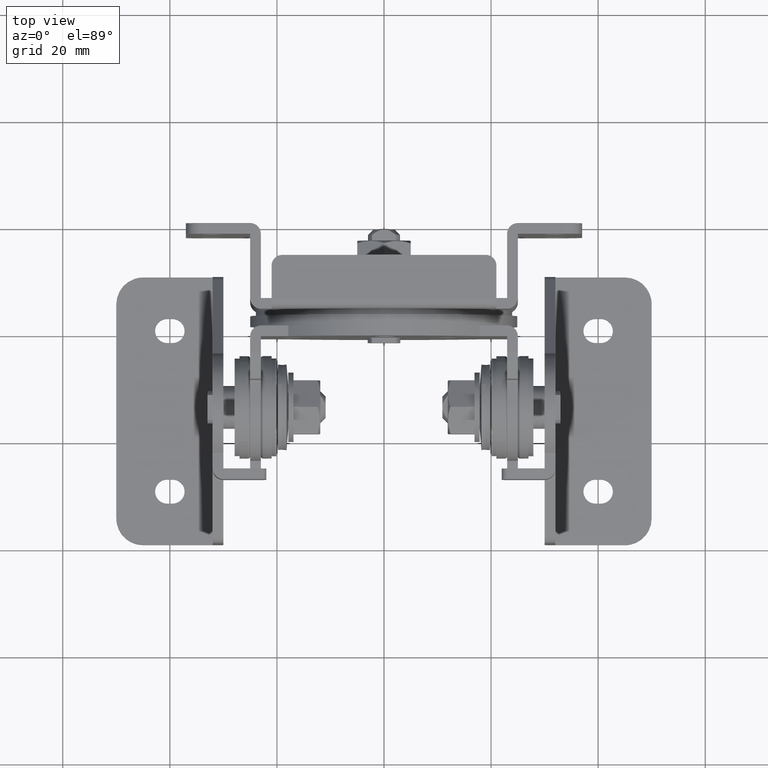
[diagram: clean part render]
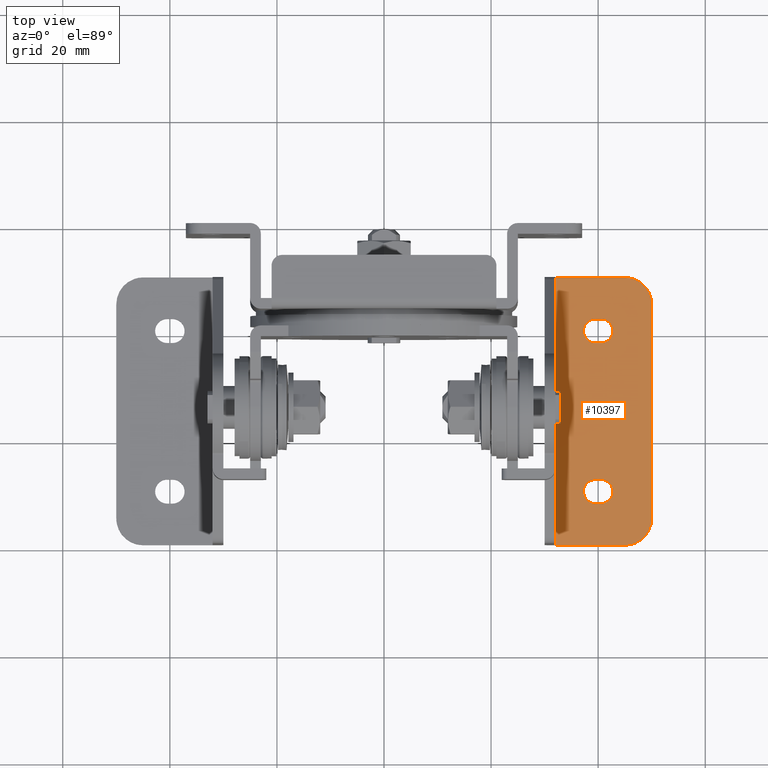
[diagram: same view with one face highlighted and labeled with its STEP entity id]
A machine part, top view. The second image highlights one B-rep face of the part: STEP entity #10397.
In plain terms, the highlighted face is a freeform B-spline surface patch.
Its self-contained STEP definition (entity closure, byte-faithful):
#10048=CARTESIAN_POINT('',(32.0,-59.000000000000902,-42.0));
#10049=VERTEX_POINT('',#10048);
#10055=CARTESIAN_POINT('',(32.0,-9.000000000000270,-42.0));
#10056=VERTEX_POINT('',#10055);
#10057=CARTESIAN_POINT('',(32.0,-9.000000000000270,-42.0));
#10058=CARTESIAN_POINT('',(32.0,-59.000000000000902,-42.0));
#10059=QUASI_UNIFORM_CURVE('',1,(#10057,#10058),.UNSPECIFIED.,.F.,.U.);
#10060=EDGE_CURVE('',#10056,#10049,#10059,.T.);
#10240=CARTESIAN_POINT('',(31.100900034887498,-61.497499903091253,-42.0));
#10241=CARTESIAN_POINT('',(50.899100447910129,-61.497499903091253,-42.0));
#10242=CARTESIAN_POINT('',(31.100900034887498,-6.502498755805436,-42.0));
#10243=CARTESIAN_POINT('',(50.899100447910129,-6.502498755805436,-42.0));
#10244=B_SPLINE_SURFACE_WITH_KNOTS('',1,1,((#10240,#10242),(#10241,#10243)),.UNSPECIFIED.,.F.,.F.,.U.,(2,2),(2,2),(0.0,19.798200413022631),(0.0,54.995001147285812),.UNSPECIFIED.);
#10245=CARTESIAN_POINT('',(45.0,-9.000000000000970,-42.0));
#10246=VERTEX_POINT('',#10245);
#10247=CARTESIAN_POINT('',(32.0,-9.000000000000270,-42.0));
#10248=CARTESIAN_POINT('',(45.0,-9.000000000000970,-42.0));
#10249=QUASI_UNIFORM_CURVE('',1,(#10247,#10248),.UNSPECIFIED.,.F.,.U.);
#10250=EDGE_CURVE('',#10056,#10246,#10249,.T.);
#10251=ORIENTED_EDGE('',*,*,#10250,.F.);
#10252=ORIENTED_EDGE('',*,*,#10060,.T.);
#10253=CARTESIAN_POINT('',(45.0,-59.000000000000902,-42.0));
#10254=VERTEX_POINT('',#10253);
#10255=CARTESIAN_POINT('',(45.0,-59.000000000000902,-42.0));
#10256=CARTESIAN_POINT('',(32.0,-59.000000000000902,-42.0));
#10257=QUASI_UNIFORM_CURVE('',1,(#10255,#10256),.UNSPECIFIED.,.F.,.U.);
#10258=EDGE_CURVE('',#10254,#10049,#10257,.T.);
#10259=ORIENTED_EDGE('',*,*,#10258,.F.);
#10260=CARTESIAN_POINT('',(50.0,-54.000000000001002,-42.0));
#10261=VERTEX_POINT('',#10260);
#10262=CARTESIAN_POINT('',(49.999999999999993,-54.000000000001002,-42.0));
#10263=CARTESIAN_POINT('',(49.999999999999986,-59.000000000000995,-42.000000000000007));
#10264=CARTESIAN_POINT('',(45.0,-59.000000000001002,-42.0));
#10272=(BOUNDED_CURVE()B_SPLINE_CURVE(2,(#10262,#10263,#10264),.UNSPECIFIED.,.F.,.U.)CURVE()GEOMETRIC_REPRESENTATION_ITEM()QUASI_UNIFORM_CURVE()RATIONAL_B_SPLINE_CURVE((1.0,0.707106781186548,1.0))REPRESENTATION_ITEM(''));
#10273=EDGE_CURVE('',#10261,#10254,#10272,.T.);
#10274=ORIENTED_EDGE('',*,*,#10273,.F.);
#10275=CARTESIAN_POINT('',(50.0,-14.000000000000959,-42.0));
#10276=VERTEX_POINT('',#10275);
#10277=CARTESIAN_POINT('',(50.0,-14.000000000000959,-42.0));
#10278=CARTESIAN_POINT('',(50.0,-54.000000000001002,-42.0));
#10279=QUASI_UNIFORM_CURVE('',1,(#10277,#10278),.UNSPECIFIED.,.F.,.U.);
#10280=EDGE_CURVE('',#10276,#10261,#10279,.T.);
#10281=ORIENTED_EDGE('',*,*,#10280,.F.);
#10282=CARTESIAN_POINT('',(45.0,-9.000000000000959,-42.0));
#10283=CARTESIAN_POINT('',(49.999999999999986,-9.000000000000959,-42.000000000000007));
#10284=CARTESIAN_POINT('',(49.999999999999993,-14.000000000000959,-42.0));
#10292=(BOUNDED_CURVE()B_SPLINE_CURVE(2,(#10282,#10283,#10284),.UNSPECIFIED.,.F.,.U.)CURVE()GEOMETRIC_REPRESENTATION_ITEM()QUASI_UNIFORM_CURVE()RATIONAL_B_SPLINE_CURVE((1.0,0.707106781186548,1.0))REPRESENTATION_ITEM(''));
#10293=EDGE_CURVE('',#10246,#10276,#10292,.T.);
#10294=ORIENTED_EDGE('',*,*,#10293,.F.);
#10295=EDGE_LOOP('',(#10251,#10252,#10259,#10274,#10281,#10294));
#10296=FACE_OUTER_BOUND('',#10295,.T.);
#10297=CARTESIAN_POINT('',(40.500000000000000,-16.750000000000849,-42.0));
#10298=VERTEX_POINT('',#10297);
#10299=CARTESIAN_POINT('',(40.500000000000000,-21.250000000000899,-42.0));
#10300=VERTEX_POINT('',#10299);
#10301=CARTESIAN_POINT('',(40.500000000000000,-16.750000000000849,-42.0));
#10302=CARTESIAN_POINT('',(42.750000000000007,-16.750000000000849,-41.999999999999993));
#10303=CARTESIAN_POINT('',(42.750000000000000,-19.000000000000849,-42.0));
#10304=CARTESIAN_POINT('',(42.750000000000007,-21.250000000000846,-41.999999999999993));
#10305=CARTESIAN_POINT('',(40.500000000000000,-21.250000000000849,-42.0));
#10313=(BOUNDED_CURVE()B_SPLINE_CURVE(2,(#10301,#10302,#10303,#10304,#10305),.UNSPECIFIED.,.F.,.U.)B_SPLINE_CURVE_WITH_KNOTS((3,2,3),(0.0,0.500000000000000,1.0),.UNSPECIFIED.)CURVE()GEOMETRIC_REPRESENTATION_ITEM()RATIONAL_B_SPLINE_CURVE((1.0,0.707106781186547,1.0,0.707106781186547,1.0))REPRESENTATION_ITEM(''));
#10314=EDGE_CURVE('',#10298,#10300,#10313,.T.);
#10315=ORIENTED_EDGE('',*,*,#10314,.T.);
#10316=CARTESIAN_POINT('',(39.500000000000000,-21.250000000000899,-42.0));
#10317=VERTEX_POINT('',#10316);
#10318=CARTESIAN_POINT('',(40.500000000000000,-21.250000000000899,-42.0));
#10319=CARTESIAN_POINT('',(39.500000000000000,-21.250000000000899,-42.0));
#10320=QUASI_UNIFORM_CURVE('',1,(#10318,#10319),.UNSPECIFIED.,.F.,.U.);
#10321=EDGE_CURVE('',#10300,#10317,#10320,.T.);
#10322=ORIENTED_EDGE('',*,*,#10321,.T.);
#10323=CARTESIAN_POINT('',(39.500000000000000,-16.750000000000799,-42.0));
#10324=VERTEX_POINT('',#10323);
#10325=CARTESIAN_POINT('',(39.500000000000000,-21.250000000000849,-42.0));
#10326=CARTESIAN_POINT('',(37.250000000000000,-21.250000000000846,-41.999999999999993));
#10327=CARTESIAN_POINT('',(37.250000000000000,-19.000000000000849,-42.0));
#10328=CARTESIAN_POINT('',(37.250000000000000,-16.750000000000849,-41.999999999999993));
#10329=CARTESIAN_POINT('',(39.500000000000000,-16.750000000000849,-42.0));
#10337=(BOUNDED_CURVE()B_SPLINE_CURVE(2,(#10325,#10326,#10327,#10328,#10329),.UNSPECIFIED.,.F.,.U.)B_SPLINE_CURVE_WITH_KNOTS((3,2,3),(0.0,0.500000000000000,1.0),.UNSPECIFIED.)CURVE()GEOMETRIC_REPRESENTATION_ITEM()RATIONAL_B_SPLINE_CURVE((1.0,0.707106781186547,1.0,0.707106781186547,1.0))REPRESENTATION_ITEM(''));
#10338=EDGE_CURVE('',#10317,#10324,#10337,.T.);
#10339=ORIENTED_EDGE('',*,*,#10338,.T.);
#10340=CARTESIAN_POINT('',(39.500000000000000,-16.750000000000799,-42.0));
#10341=CARTESIAN_POINT('',(40.500000000000000,-16.750000000000849,-42.0));
#10342=QUASI_UNIFORM_CURVE('',1,(#10340,#10341),.UNSPECIFIED.,.F.,.U.);
#10343=EDGE_CURVE('',#10324,#10298,#10342,.T.);
#10344=ORIENTED_EDGE('',*,*,#10343,.T.);
#10345=EDGE_LOOP('',(#10315,#10322,#10339,#10344));
#10346=FACE_BOUND('',#10345,.T.);
#10347=CARTESIAN_POINT('',(40.500000000000000,-46.750000000001002,-42.0));
#10348=VERTEX_POINT('',#10347);
#10349=CARTESIAN_POINT('',(40.500000000000000,-51.250000000001002,-42.0));
#10350=VERTEX_POINT('',#10349);
#10351=CARTESIAN_POINT('',(40.500000000000000,-46.750000000001002,-42.0));
#10352=CARTESIAN_POINT('',(42.750000000000007,-46.750000000000995,-41.999999999999993));
#10353=CARTESIAN_POINT('',(42.750000000000000,-49.000000000001002,-42.0));
#10354=CARTESIAN_POINT('',(42.750000000000007,-51.250000000001009,-41.999999999999993));
#10355=CARTESIAN_POINT('',(40.500000000000000,-51.250000000001002,-42.0));
#10363=(BOUNDED_CURVE()B_SPLINE_CURVE(2,(#10351,#10352,#10353,#10354,#10355),.UNSPECIFIED.,.F.,.U.)B_SPLINE_CURVE_WITH_KNOTS((3,2,3),(0.0,0.500000000000000,1.0),.UNSPECIFIED.)CURVE()GEOMETRIC_REPRESENTATION_ITEM()RATIONAL_B_SPLINE_CURVE((1.0,0.707106781186547,1.0,0.707106781186547,1.0))REPRESENTATION_ITEM(''));
#10364=EDGE_CURVE('',#10348,#10350,#10363,.T.);
#10365=ORIENTED_EDGE('',*,*,#10364,.T.);
#10366=CARTESIAN_POINT('',(39.500000000000000,-51.250000000001002,-42.0));
#10367=VERTEX_POINT('',#10366);
#10368=CARTESIAN_POINT('',(40.500000000000000,-51.250000000001002,-42.0));
#10369=CARTESIAN_POINT('',(39.500000000000000,-51.250000000001002,-42.0));
#10370=QUASI_UNIFORM_CURVE('',1,(#10368,#10369),.UNSPECIFIED.,.F.,.U.);
#10371=EDGE_CURVE('',#10350,#10367,#10370,.T.);
#10372=ORIENTED_EDGE('',*,*,#10371,.T.);
#10373=CARTESIAN_POINT('',(39.500000000000000,-46.750000000001002,-42.0));
#10374=VERTEX_POINT('',#10373);
#10375=CARTESIAN_POINT('',(39.500000000000000,-51.250000000001002,-42.0));
#10376=CARTESIAN_POINT('',(37.250000000000000,-51.250000000001009,-41.999999999999993));
#10377=CARTESIAN_POINT('',(37.250000000000000,-49.000000000001002,-42.0));
#10378=CARTESIAN_POINT('',(37.250000000000000,-46.750000000000995,-41.999999999999993));
#10379=CARTESIAN_POINT('',(39.500000000000000,-46.750000000001002,-42.0));
#10387=(BOUNDED_CURVE()B_SPLINE_CURVE(2,(#10375,#10376,#10377,#10378,#10379),.UNSPECIFIED.,.F.,.U.)B_SPLINE_CURVE_WITH_KNOTS((3,2,3),(0.0,0.500000000000000,1.0),.UNSPECIFIED.)CURVE()GEOMETRIC_REPRESENTATION_ITEM()RATIONAL_B_SPLINE_CURVE((1.0,0.707106781186547,1.0,0.707106781186547,1.0))REPRESENTATION_ITEM(''));
#10388=EDGE_CURVE('',#10367,#10374,#10387,.T.);
#10389=ORIENTED_EDGE('',*,*,#10388,.T.);
#10390=CARTESIAN_POINT('',(39.500000000000000,-46.750000000001002,-42.0));
#10391=CARTESIAN_POINT('',(40.500000000000000,-46.750000000001002,-42.0));
#10392=QUASI_UNIFORM_CURVE('',1,(#10390,#10391),.UNSPECIFIED.,.F.,.U.);
#10393=EDGE_CURVE('',#10374,#10348,#10392,.T.);
#10394=ORIENTED_EDGE('',*,*,#10393,.T.);
#10395=EDGE_LOOP('',(#10365,#10372,#10389,#10394));
#10396=FACE_BOUND('',#10395,.T.);
#10397=ADVANCED_FACE('',(#10296,#10346,#10396),#10244,.T.);